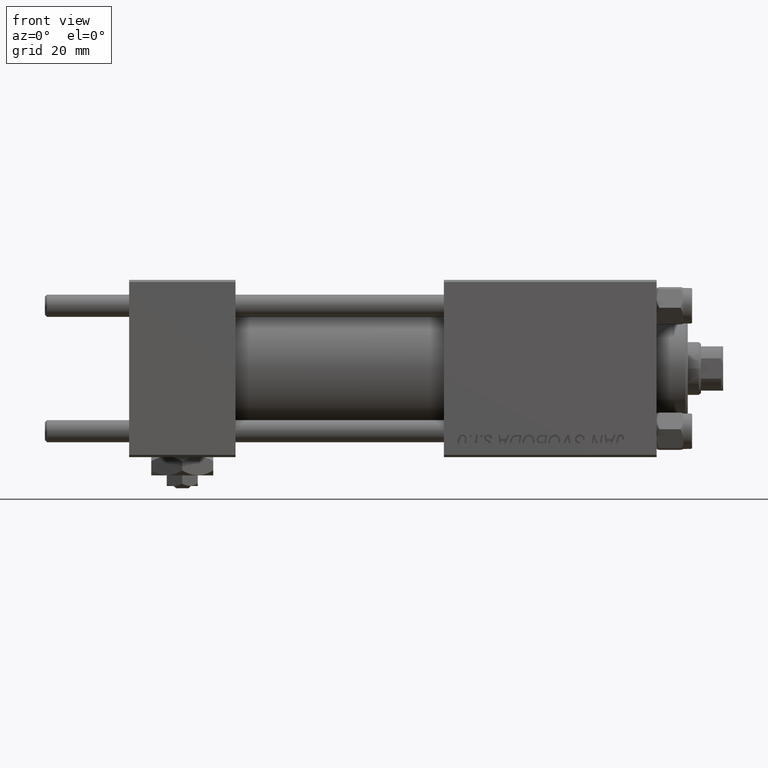
[diagram: clean part render]
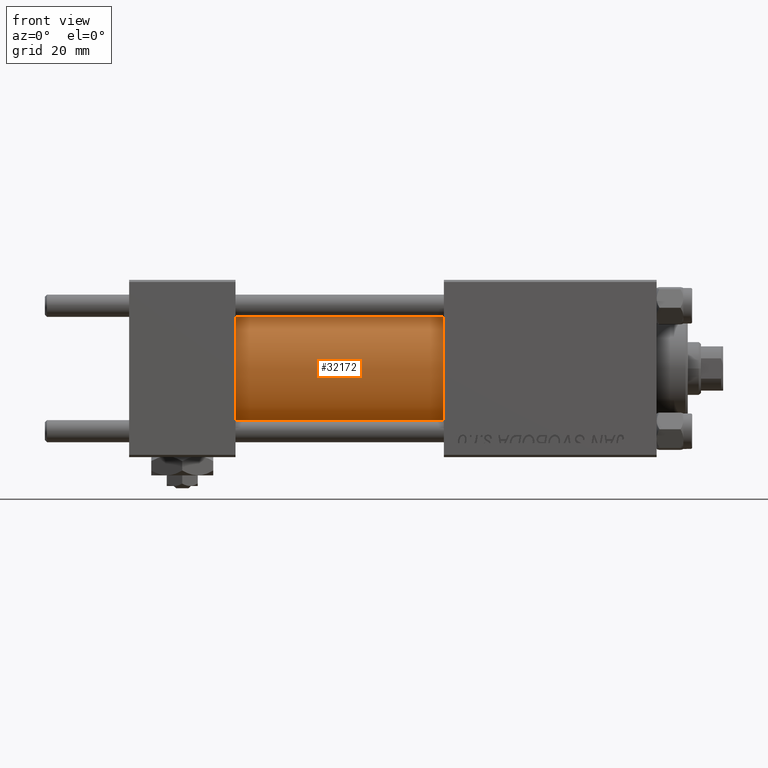
[diagram: same view with one face highlighted and labeled with its STEP entity id]
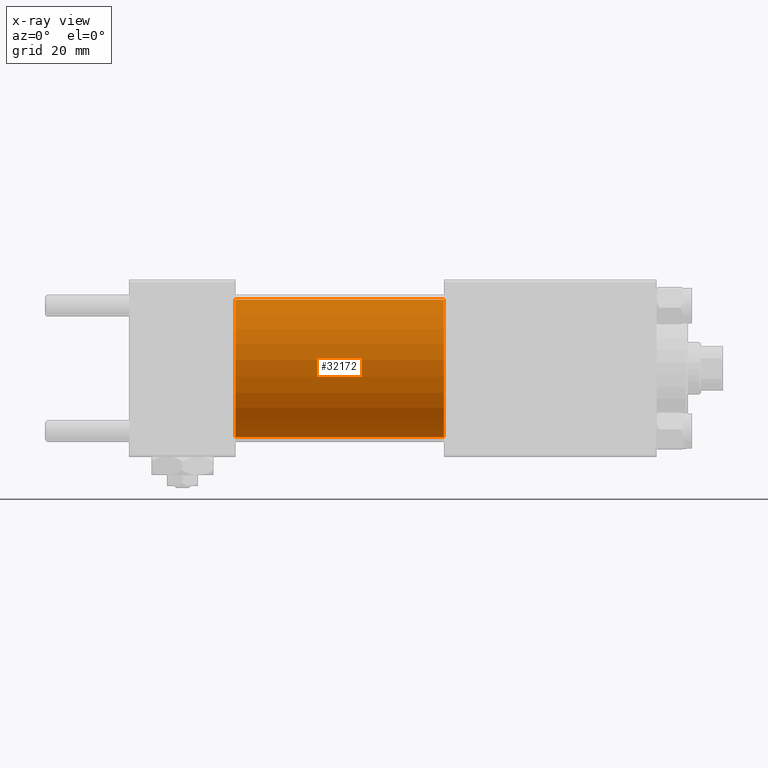
[diagram: x-ray of the same camera — body ghosted, the highlighted face saturated]
A machine part, front view. The second image highlights one B-rep face of the part: STEP entity #32172.
The next image is the same camera in x-ray: the body ghosted, the highlighted face saturated — about 0% of this face is hidden behind the body in this view.
In plain terms, the highlighted cylindrical surface (partial cylindrical patch) has radius 15.5 mm, axis along (-1, -0, -0).
Its self-contained STEP definition (entity closure, byte-faithful):
#128 = DIRECTION ( 'NONE',  ( 1.000000000000000000, 0.000000000000000000, 0.000000000000000000 ) ) ;
#259 = DIRECTION ( 'NONE',  ( -1.000000000000000000, -0.000000000000000000, -0.000000000000000000 ) ) ;
#890 = EDGE_LOOP ( 'NONE', ( #44729, #39710, #37021, #10827 ) ) ;
#2558 = DIRECTION ( 'NONE',  ( 0.000000000000000000, 0.000000000000000000, 1.000000000000000000 ) ) ;
#8446 = EDGE_CURVE ( 'NONE', #41284, #47402, #38301, .T. ) ;
#8956 = FACE_OUTER_BOUND ( 'NONE', #890, .T. ) ;
#9194 = CARTESIAN_POINT ( 'NONE',  ( 24.00000000000000000, 1.898202538678397557E-15, -15.50000000000000000 ) ) ;
#9237 = VECTOR ( 'NONE', #259, 1000.000000000000000 ) ;
#9636 = CARTESIAN_POINT ( 'NONE',  ( 71.00000000000001421, 1.898202538678397557E-15, -15.50000000000000000 ) ) ;
#9720 = EDGE_CURVE ( 'NONE', #42724, #29049, #24140, .T. ) ;
#10021 = EDGE_CURVE ( 'NONE', #29049, #47402, #19837, .T. ) ;
#10827 = ORIENTED_EDGE ( 'NONE', *, *, #8446, .T. ) ;
#13156 = CARTESIAN_POINT ( 'NONE',  ( 71.00000000000001421, 0.000000000000000000, 15.50000000000000000 ) ) ;
#19691 = DIRECTION ( 'NONE',  ( 1.000000000000000000, 0.000000000000000000, 0.000000000000000000 ) ) ;
#19837 = LINE ( 'NONE', #28706, #9237 ) ;
#23041 = VECTOR ( 'NONE', #45513, 1000.000000000000000 ) ;
#24140 = CIRCLE ( 'NONE', #34980, 15.50000000000000000 ) ;
#24850 = CYLINDRICAL_SURFACE ( 'NONE', #32336, 15.50000000000000000 ) ;
#25791 = AXIS2_PLACEMENT_3D ( 'NONE', #30226, #19691, #2558 ) ;
#28706 = CARTESIAN_POINT ( 'NONE',  ( 71.00000000000001421, 1.898202538678397557E-15, -15.50000000000000000 ) ) ;
#28728 = EDGE_CURVE ( 'NONE', #42724, #41284, #44998, .T. ) ;
#29049 = VERTEX_POINT ( 'NONE', #9636 ) ;
#30226 = CARTESIAN_POINT ( 'NONE',  ( 24.00000000000000000, 0.000000000000000000, 0.000000000000000000 ) ) ;
#32172 = ADVANCED_FACE ( 'NONE', ( #8956 ), #24850, .T. ) ;
#32336 = AXIS2_PLACEMENT_3D ( 'NONE', #40779, #48371, #40521 ) ;
#34980 = AXIS2_PLACEMENT_3D ( 'NONE', #43473, #128, #36151 ) ;
#35031 = CARTESIAN_POINT ( 'NONE',  ( 24.00000000000000000, 0.000000000000000000, 15.50000000000000000 ) ) ;
#36151 = DIRECTION ( 'NONE',  ( 0.000000000000000000, 0.000000000000000000, -1.000000000000000000 ) ) ;
#37021 = ORIENTED_EDGE ( 'NONE', *, *, #28728, .T. ) ;
#38301 = CIRCLE ( 'NONE', #25791, 15.50000000000000000 ) ;
#39710 = ORIENTED_EDGE ( 'NONE', *, *, #9720, .F. ) ;
#40521 = DIRECTION ( 'NONE',  ( 0.000000000000000000, 0.000000000000000000, 1.000000000000000000 ) ) ;
#40779 = CARTESIAN_POINT ( 'NONE',  ( 71.00000000000001421, 0.000000000000000000, 0.000000000000000000 ) ) ;
#41216 = CARTESIAN_POINT ( 'NONE',  ( 71.00000000000001421, 0.000000000000000000, 15.50000000000000000 ) ) ;
#41284 = VERTEX_POINT ( 'NONE', #35031 ) ;
#42724 = VERTEX_POINT ( 'NONE', #41216 ) ;
#43473 = CARTESIAN_POINT ( 'NONE',  ( 71.00000000000001421, 0.000000000000000000, 0.000000000000000000 ) ) ;
#44729 = ORIENTED_EDGE ( 'NONE', *, *, #10021, .F. ) ;
#44998 = LINE ( 'NONE', #13156, #23041 ) ;
#45513 = DIRECTION ( 'NONE',  ( -1.000000000000000000, -0.000000000000000000, -0.000000000000000000 ) ) ;
#47402 = VERTEX_POINT ( 'NONE', #9194 ) ;
#48371 = DIRECTION ( 'NONE',  ( -1.000000000000000000, -0.000000000000000000, -0.000000000000000000 ) ) ;